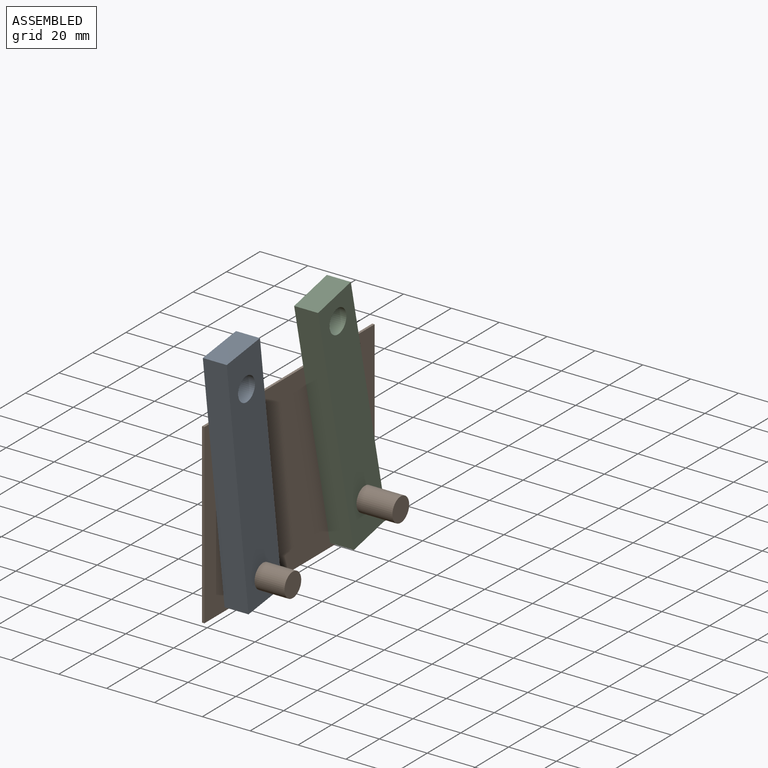
[diagram: assembled view]
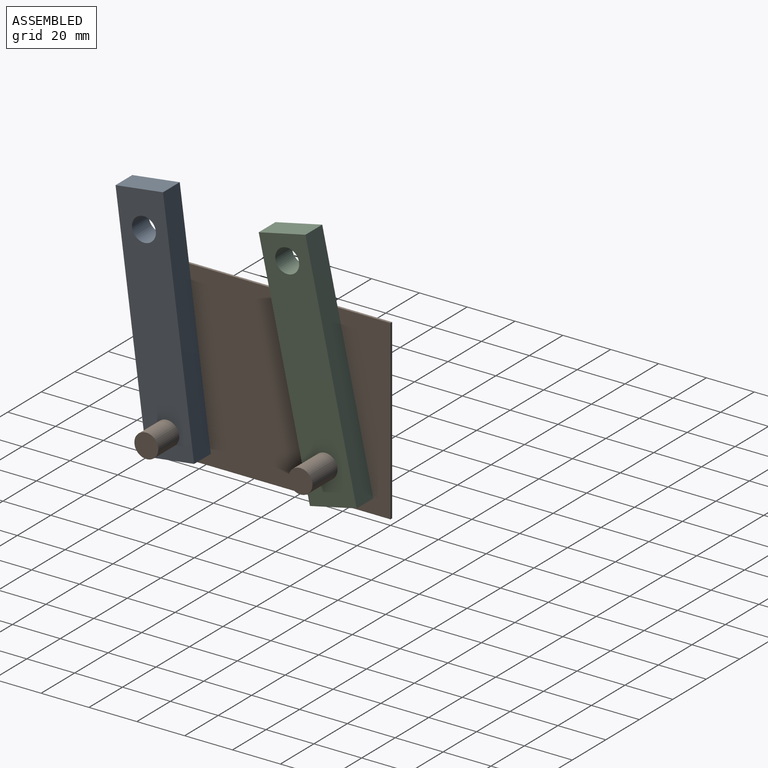
[diagram: assembled view, second angle]
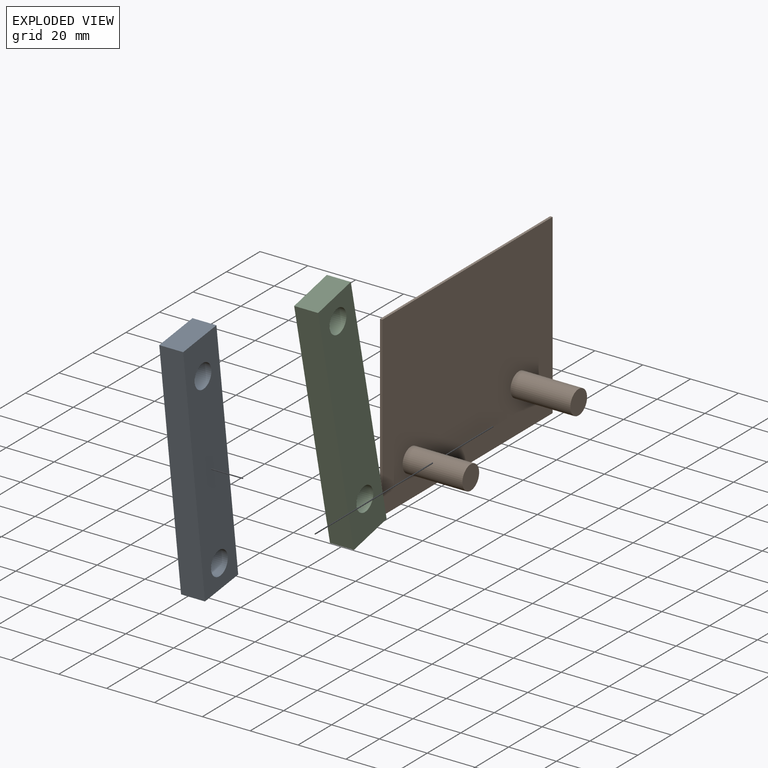
[diagram: exploded view]
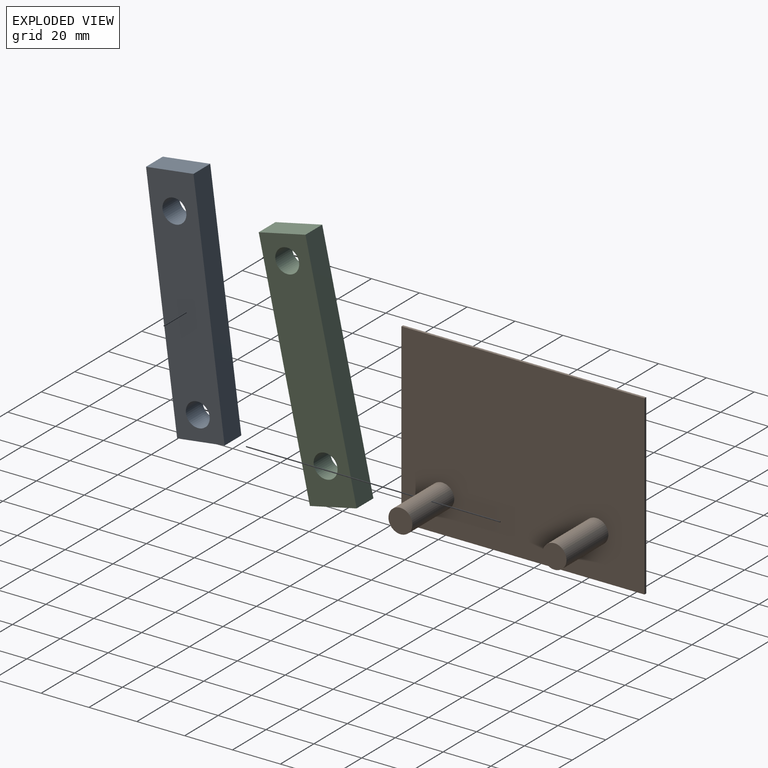
[diagram: exploded view, second angle]
ASSEMBLY  parts=3 mates=2
PART A: 8 faces, bbox 100x10x20 mm
  f0: plane 100x10mm, normal (0,0,1), area 1000mm2, adj f1,f5,f6,f7
  f1: plane 20x10mm, normal (-1,0,0), area 200mm2, adj f0,f2,f6,f7
  f2: plane 100x10mm, normal (0,0,-1), area 1000mm2, adj f1,f5,f6,f7
  f3: cylinder r=5mm len=10mm, axis (0,1,0), area 314.2mm2, adj f6,f7
  f4: cylinder r=5mm len=10mm, axis (0,1,0), area 314.2mm2, adj f6,f7
  f5: plane 20x10mm, normal (1,0,0), area 200mm2, adj f0,f2,f6,f7
  f6: plane 100x20mm, normal (0,-1,0), area 1842.9mm2, adj f0,f1,f2,f3,f4,f5
  f7: plane 100x20mm, normal (0,1,0), area 1842.9mm2, adj f0,f1,f2,f3,f4,f5
PART B: 10 faces, bbox 74.2x26x101.6 mm
  f0: plane 101.63x1mm, normal (-1,0,0), area 101.6mm2, adj f1,f3,f4,f5
  f1: plane 74.15x1mm, normal (0,0,-1), area 74.1mm2, adj f0,f2,f4,f5
  f2: plane 101.63x1mm, normal (1,0,0), area 101.6mm2, adj f1,f3,f4,f5
  f3: plane 74.15x1mm, normal (0,0,1), area 74.1mm2, adj f0,f2,f4,f5
  f4: plane 101.63x74.15mm, normal (0,-1,0), area 7378.5mm2, adj f0,f1,f2,f3,f6,f8
  f5: plane 101.63x74.15mm, normal (0,1,0), area 7535.6mm2, adj f0,f1,f2,f3
  f6: cylinder r=5mm len=25mm, axis (0,1,0), area 785.4mm2, adj f4,f7
  f7: plane 10x10mm, normal (0,-1,0), area 78.5mm2, adj f6
  f8: cylinder r=5mm len=25mm, axis (0,1,0), area 785.4mm2, adj f4,f9
  f9: plane 10x10mm, normal (0,-1,0), area 78.5mm2, adj f8
PART C: same geometry as A
PLACE A rot(axis=(0.6,-0.6,0.53),124.4deg) t=(2.5,-65.75,102.8)mm
PLACE B rot(axis=(0.58,-0.58,0.58),120deg) t=(-1,0,0)mm
PLACE C rot(axis=(-0.53,0.53,0.66),113.1deg) t=(0,-47.39,2.42)mm
MATE revolute B.f8 <-> C.f4  axis (1,0,0) through (0,-20.12,18.54)mm
MATE revolute A.f3 <-> B.f6  axis (1,0,0) through (12.5,-84.54,14.7)mm
